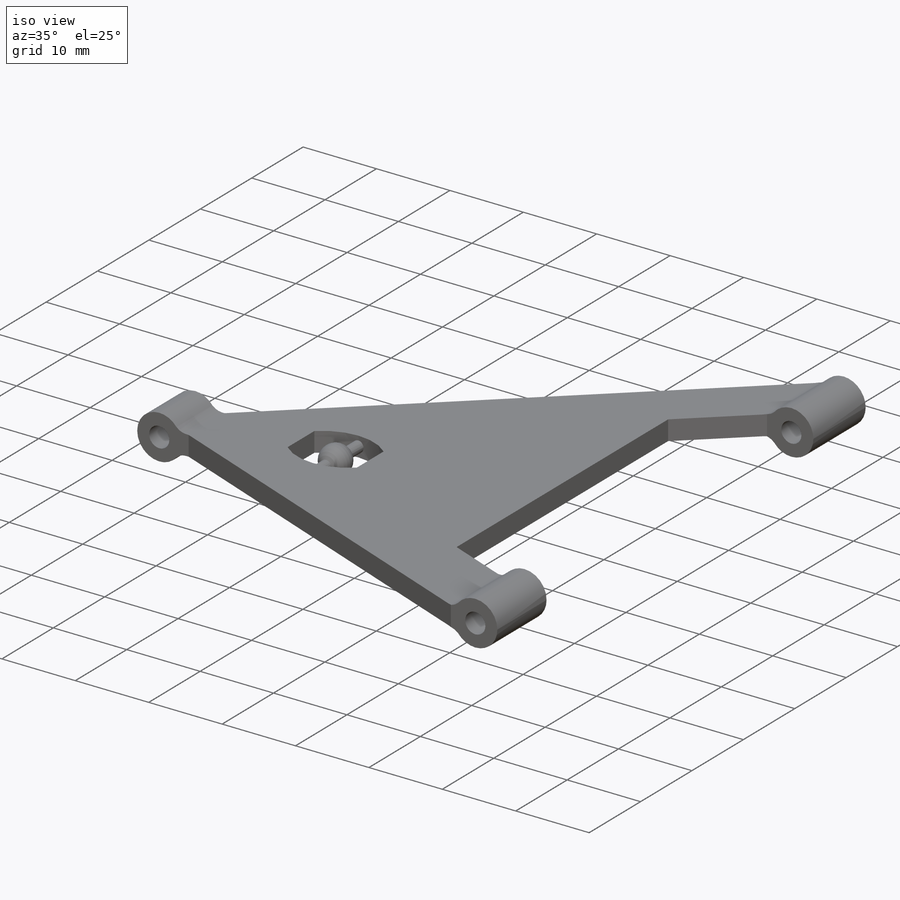
[diagram: iso view]
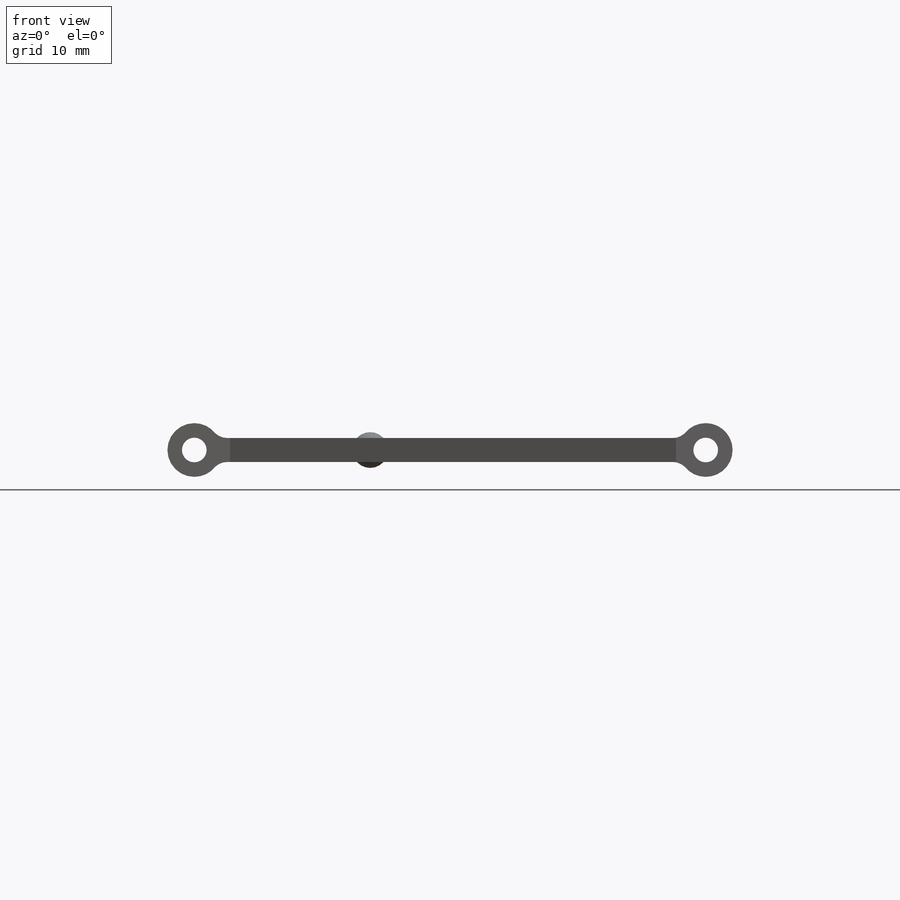
[diagram: front view]
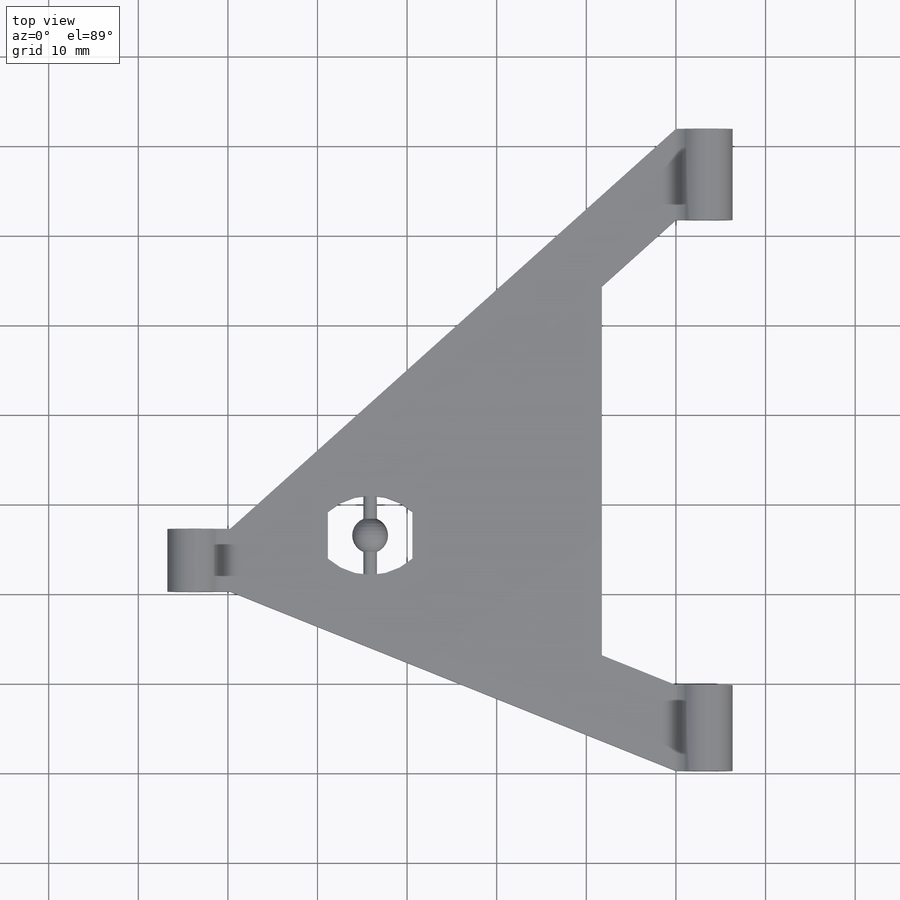
[diagram: top view]
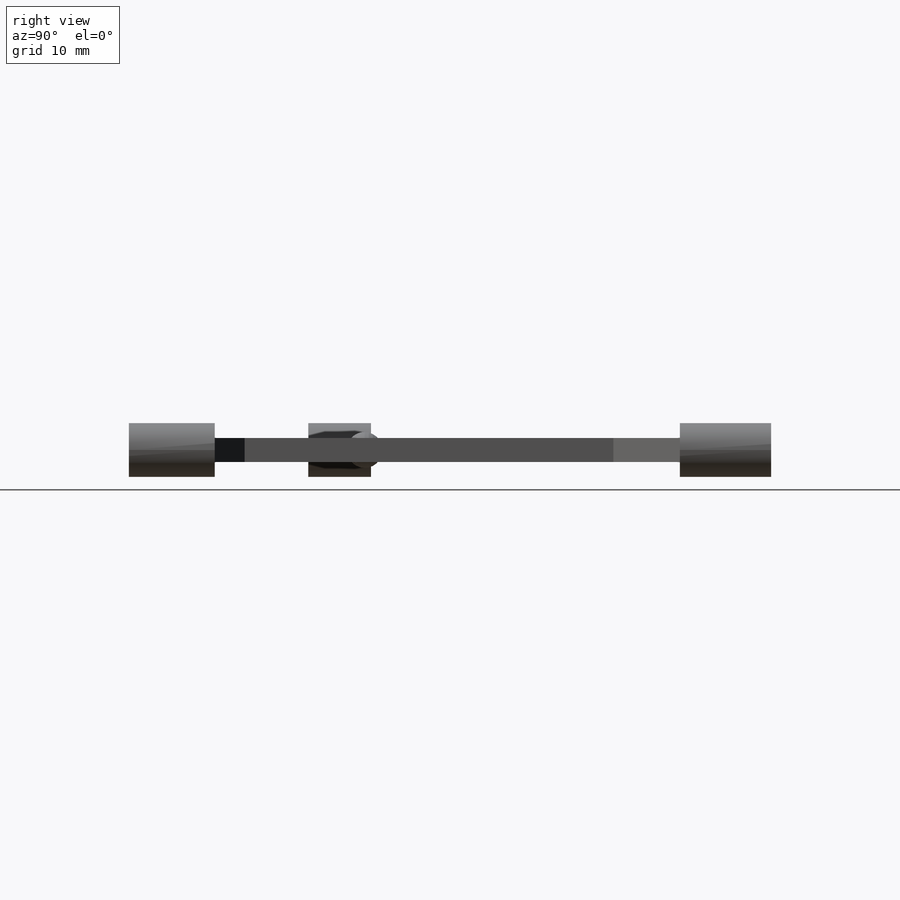
[diagram: right view]
SOLIDWORKS PART (.sldprt)
format: sldprt  version: not decoded by parser v0  size: 235,520 bytes
history: native  units: mm
features: sketch x3, material x1, extrude x1, cut_extrude x1, fillet x1, revolve x1 (+11 scaffold rows collapsed)
feature tree (19):
  scaffold x11  (default folders/planes/origin — collapsed)
  material  "Material <not specified>"
  sketch  "Sketch1"  dims[D1=71.66mm D2=7.0mm D3=7.0mm D4=2.75mm D5=56.75mm]
  extrude  "Boss-Extrude1"  Depth=3mm
  sketch  "Sketch2"  dims[D1=2.75mm]
  cut_extrude  "Cut-Extrude1"  [1 undecoded]
  fillet  "Fillet2"  Radius=3mm
  sketch  "Sketch3"  dims[D1=2.0mm D2=0.75mm]
  revolve  "Revolve1"  Angle=360deg
decode coverage: 6 of 7 modeling features carry decoded parameters
note: 1 parameter value undecoded
note: suppression state not decoded; provenance and decode notes live in map.json
